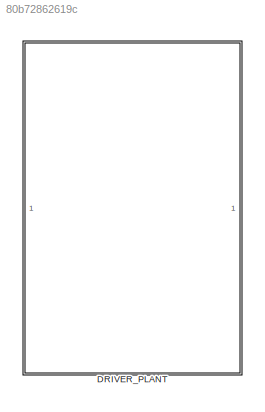
MODEL slx_80b72862619c
KIND library
CONFIG AbsTol = auto
CONFIG EnableMultiTasking = off
CONFIG FixedStep = auto
CONFIG MaxStep = auto
CONFIG MinStep = auto
CONFIG RelTol = 1e-3
CONFIG SampleTimeConstraint = Unconstrained
CONFIG SolverName = VariableStepAuto
CONFIG StartTime = 0.0
CONFIG StopTime = 10.0
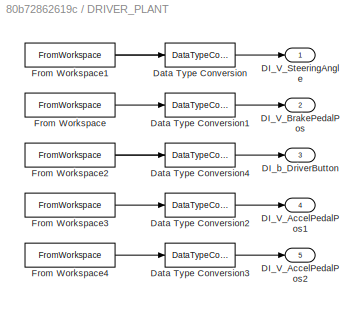
BLOCK [SubSystem] DRIVER_PLANT
BLOCK [Outport] DRIVER_PLANT/DI_V_AccelPedalPos1
  Port = 4
BLOCK [Outport] DRIVER_PLANT/DI_V_AccelPedalPos2
  Port = 5
BLOCK [Outport] DRIVER_PLANT/DI_V_BrakePedalPos
  Port = 2
BLOCK [Outport] DRIVER_PLANT/DI_V_SteeringAngle
BLOCK [Outport] DRIVER_PLANT/DI_b_DriverButton
  Port = 3
BLOCK [DataTypeConversion] DRIVER_PLANT/Data Type Conversion
  OutDataTypeStr = int16
  RndMeth = Floor
  SaturateOnIntegerOverflow = off
BLOCK [DataTypeConversion] DRIVER_PLANT/Data Type Conversion1
  OutDataTypeStr = int16
  RndMeth = Floor
  SaturateOnIntegerOverflow = off
BLOCK [DataTypeConversion] DRIVER_PLANT/Data Type Conversion2
  OutDataTypeStr = int16
  RndMeth = Floor
  SaturateOnIntegerOverflow = off
BLOCK [DataTypeConversion] DRIVER_PLANT/Data Type Conversion3
  OutDataTypeStr = int16
  RndMeth = Floor
  SaturateOnIntegerOverflow = off
BLOCK [DataTypeConversion] DRIVER_PLANT/Data Type Conversion4
  OutDataTypeStr = boolean
  RndMeth = Floor
  SaturateOnIntegerOverflow = off
BLOCK [FromWorkspace] DRIVER_PLANT/From Workspace
  VariableName = DI_V_BrakePedalPos
BLOCK [FromWorkspace] DRIVER_PLANT/From Workspace1
  VariableName = DI_V_SteeringAngle
BLOCK [FromWorkspace] DRIVER_PLANT/From Workspace2
  VariableName = DI_b_DriverButton
BLOCK [FromWorkspace] DRIVER_PLANT/From Workspace3
  VariableName = DI_V_AccelPedalPos1
BLOCK [FromWorkspace] DRIVER_PLANT/From Workspace4
  VariableName = DI_V_AccelPedalPos2
LINE DRIVER_PLANT/Data Type Conversion1:1 -> DRIVER_PLANT/DI_V_BrakePedalPos:1
LINE DRIVER_PLANT/Data Type Conversion2:1 -> DRIVER_PLANT/DI_V_AccelPedalPos1:1
LINE DRIVER_PLANT/Data Type Conversion3:1 -> DRIVER_PLANT/DI_V_AccelPedalPos2:1
LINE DRIVER_PLANT/Data Type Conversion4:1 -> DRIVER_PLANT/DI_b_DriverButton:1
LINE DRIVER_PLANT/Data Type Conversion:1 -> DRIVER_PLANT/DI_V_SteeringAngle:1
LINE DRIVER_PLANT/From Workspace1:1 -> DRIVER_PLANT/Data Type Conversion:1
LINE DRIVER_PLANT/From Workspace2:1 -> DRIVER_PLANT/Data Type Conversion4:1
LINE DRIVER_PLANT/From Workspace3:1 -> DRIVER_PLANT/Data Type Conversion2:1
LINE DRIVER_PLANT/From Workspace4:1 -> DRIVER_PLANT/Data Type Conversion3:1
LINE DRIVER_PLANT/From Workspace:1 -> DRIVER_PLANT/Data Type Conversion1:1
